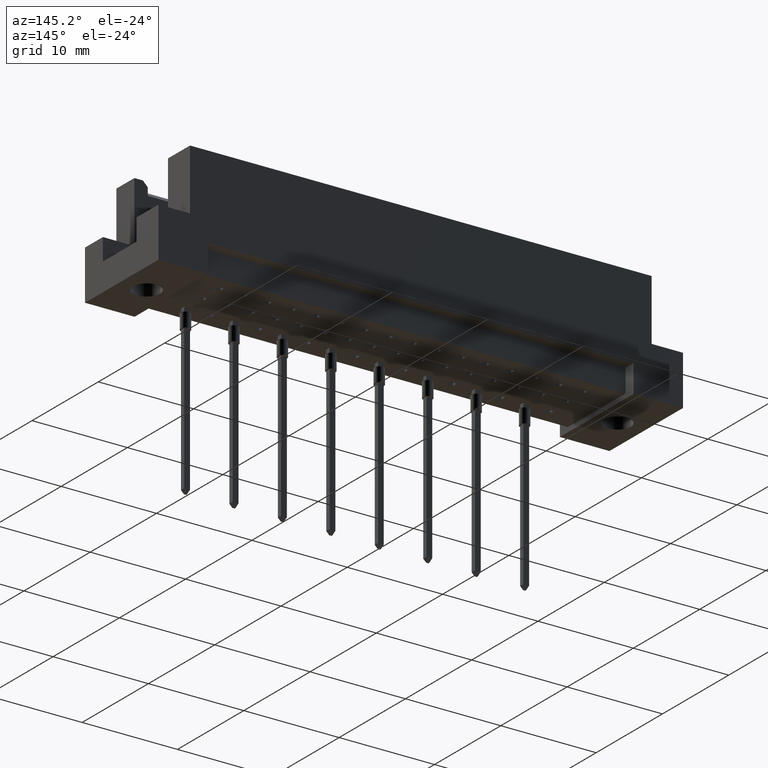
[diagram: clean part render]
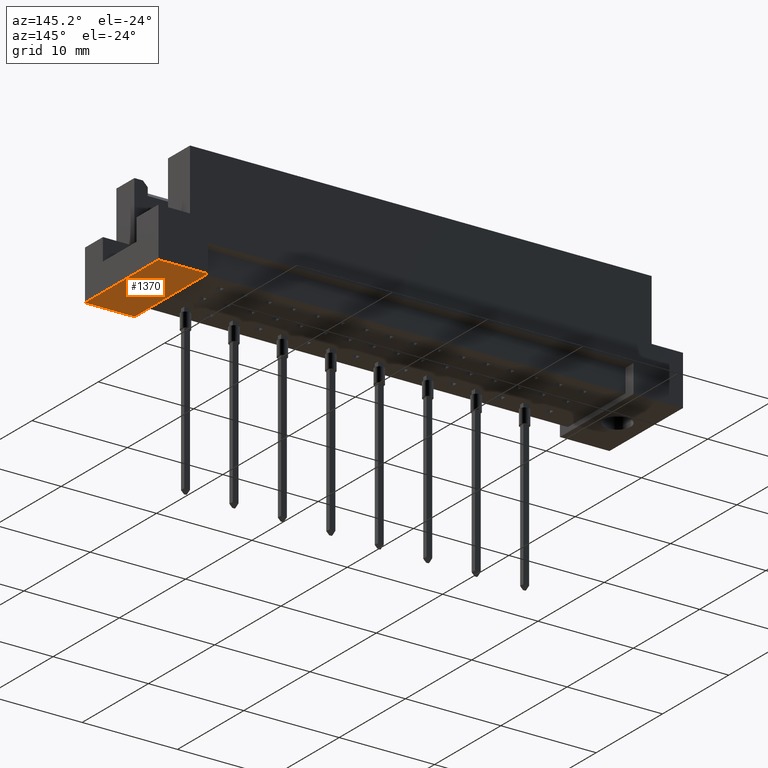
[diagram: same view with one face highlighted and labeled with its STEP entity id]
A machine part, auxiliary view. The second image highlights one B-rep face of the part: STEP entity #1370.
In plain terms, the highlighted planar face has unit normal (0, 0, 1).
Its self-contained STEP definition (entity closure, byte-faithful):
#509 = VERTEX_POINT ( 'NONE', #554 ) ;
#536 = VERTEX_POINT ( 'NONE', #2616 ) ;
#554 = CARTESIAN_POINT ( 'NONE',  ( 23.28000000000000469, 5.250000000000000000, 0.0000000000000000000 ) ) ;
#576 = ORIENTED_EDGE ( 'NONE', *, *, #1344, .F. ) ;
#727 = LINE ( 'NONE', #5795, #1092 ) ;
#752 = CARTESIAN_POINT ( 'NONE',  ( 24.67999999999999972, 5.250000000000000000, 0.0000000000000000000 ) ) ;
#1088 = VERTEX_POINT ( 'NONE', #5354 ) ;
#1092 = VECTOR ( 'NONE', #4439, 1000.000000000000000 ) ;
#1301 = DIRECTION ( 'NONE',  ( -1.000000000000000000, 0.0000000000000000000, 0.0000000000000000000 ) ) ;
#1344 = EDGE_CURVE ( 'NONE', #4298, #509, #2215, .T. ) ;
#1370 = ADVANCED_FACE ( 'NONE', ( #2150, #6587 ), #4459, .F. ) ;
#1712 = EDGE_LOOP ( 'NONE', ( #2955, #576 ) ) ;
#1745 = LINE ( 'NONE', #5385, #2729 ) ;
#2136 = EDGE_CURVE ( 'NONE', #536, #8723, #727, .T. ) ;
#2150 = FACE_BOUND ( 'NONE', #1712, .T. ) ;
#2215 = CIRCLE ( 'NONE', #5733, 1.399999999999995026 ) ;
#2221 = CARTESIAN_POINT ( 'NONE',  ( 27.50000000000000000, 11.09999999999999964, -6.735557395310442615E-15 ) ) ;
#2416 = CARTESIAN_POINT ( 'NONE',  ( 26.07999999999999474, 5.250000000000000000, 0.0000000000000000000 ) ) ;
#2616 = CARTESIAN_POINT ( 'NONE',  ( 27.50000000000000000, 0.0000000000000000000, -6.735557395310442615E-15 ) ) ;
#2729 = VECTOR ( 'NONE', #6777, 1000.000000000000000 ) ;
#2770 = ORIENTED_EDGE ( 'NONE', *, *, #2136, .T. ) ;
#2852 = DIRECTION ( 'NONE',  ( 0.0000000000000000000, 0.0000000000000000000, -1.000000000000000000 ) ) ;
#2955 = ORIENTED_EDGE ( 'NONE', *, *, #5839, .F. ) ;
#3494 = VECTOR ( 'NONE', #5848, 1000.000000000000000 ) ;
#3495 = AXIS2_PLACEMENT_3D ( 'NONE', #5378, #8323, #1301 ) ;
#3751 = CARTESIAN_POINT ( 'NONE',  ( 27.50000000000000000, 11.09999999999999964, -6.735557395310442615E-15 ) ) ;
#3944 = AXIS2_PLACEMENT_3D ( 'NONE', #8606, #8744, #6635 ) ;
#4298 = VERTEX_POINT ( 'NONE', #2416 ) ;
#4439 = DIRECTION ( 'NONE',  ( -1.000000000000000000, -0.0000000000000000000, 1.224646799147353207E-16 ) ) ;
#4459 = PLANE ( 'NONE',  #3944 ) ;
#5177 = EDGE_CURVE ( 'NONE', #1088, #8723, #1745, .T. ) ;
#5354 = CARTESIAN_POINT ( 'NONE',  ( 22.30000000000000071, 11.09999999999999964, 0.0000000000000000000 ) ) ;
#5378 = CARTESIAN_POINT ( 'NONE',  ( 24.67999999999999972, 5.250000000000000000, 0.0000000000000000000 ) ) ;
#5385 = CARTESIAN_POINT ( 'NONE',  ( 22.30000000000000071, 11.09999999999999964, 0.0000000000000000000 ) ) ;
#5558 = CARTESIAN_POINT ( 'NONE',  ( 22.30000000000000071, 0.0000000000000000000, 0.0000000000000000000 ) ) ;
#5733 = AXIS2_PLACEMENT_3D ( 'NONE', #752, #2852, #5864 ) ;
#5795 = CARTESIAN_POINT ( 'NONE',  ( -27.50000000000000000, 0.0000000000000000000, 0.0000000000000000000 ) ) ;
#5811 = EDGE_CURVE ( 'NONE', #6841, #1088, #6144, .T. ) ;
#5839 = EDGE_CURVE ( 'NONE', #509, #4298, #5901, .T. ) ;
#5848 = DIRECTION ( 'NONE',  ( -0.0000000000000000000, -1.000000000000000000, -0.0000000000000000000 ) ) ;
#5864 = DIRECTION ( 'NONE',  ( -1.000000000000000000, 0.0000000000000000000, 0.0000000000000000000 ) ) ;
#5901 = CIRCLE ( 'NONE', #3495, 1.399999999999995026 ) ;
#6144 = LINE ( 'NONE', #6244, #6208 ) ;
#6208 = VECTOR ( 'NONE', #8966, 1000.000000000000000 ) ;
#6244 = CARTESIAN_POINT ( 'NONE',  ( -27.50000000000000000, 11.09999999999999964, 0.0000000000000000000 ) ) ;
#6509 = ORIENTED_EDGE ( 'NONE', *, *, #5177, .F. ) ;
#6587 = FACE_OUTER_BOUND ( 'NONE', #6764, .T. ) ;
#6635 = DIRECTION ( 'NONE',  ( 1.000000000000000000, 0.0000000000000000000, -1.224646799147353207E-16 ) ) ;
#6674 = LINE ( 'NONE', #2221, #3494 ) ;
#6764 = EDGE_LOOP ( 'NONE', ( #2770, #6509, #8810, #8629 ) ) ;
#6777 = DIRECTION ( 'NONE',  ( 0.0000000000000000000, -1.000000000000000000, 0.0000000000000000000 ) ) ;
#6841 = VERTEX_POINT ( 'NONE', #3751 ) ;
#8323 = DIRECTION ( 'NONE',  ( 0.0000000000000000000, 0.0000000000000000000, -1.000000000000000000 ) ) ;
#8606 = CARTESIAN_POINT ( 'NONE',  ( -27.50000000000000000, 11.09999999999999964, 0.0000000000000000000 ) ) ;
#8629 = ORIENTED_EDGE ( 'NONE', *, *, #8925, .T. ) ;
#8723 = VERTEX_POINT ( 'NONE', #5558 ) ;
#8744 = DIRECTION ( 'NONE',  ( 1.224646799147353207E-16, -0.0000000000000000000, 1.000000000000000000 ) ) ;
#8810 = ORIENTED_EDGE ( 'NONE', *, *, #5811, .F. ) ;
#8925 = EDGE_CURVE ( 'NONE', #6841, #536, #6674, .T. ) ;
#8966 = DIRECTION ( 'NONE',  ( -1.000000000000000000, -0.0000000000000000000, 1.224646799147353207E-16 ) ) ;